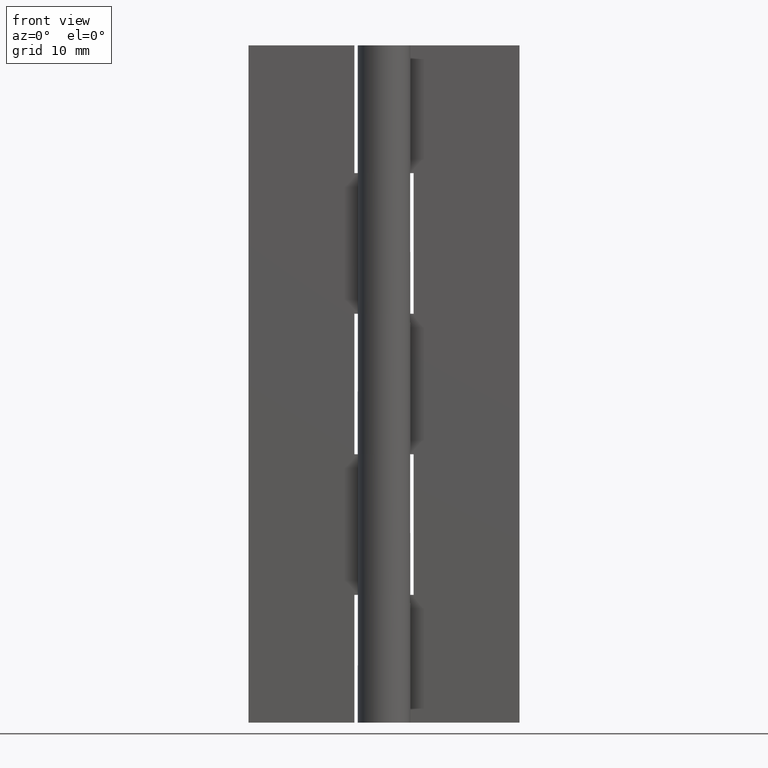
[diagram: clean part render]
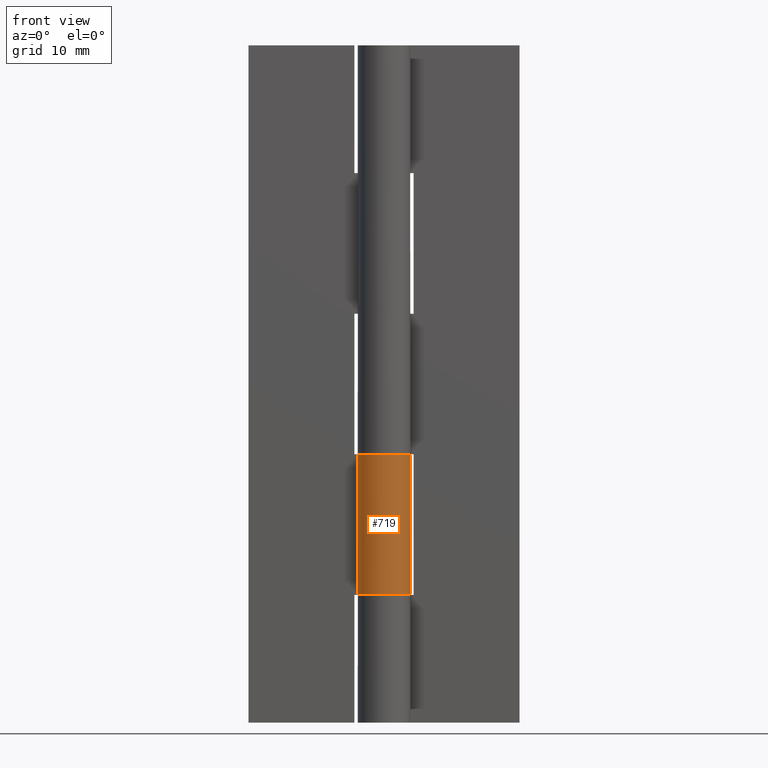
[diagram: same view with one face highlighted and labeled with its STEP entity id]
A machine part, front view. The second image highlights one B-rep face of the part: STEP entity #719.
In plain terms, the highlighted face is a freeform B-spline surface patch.
Its self-contained STEP definition (entity closure, byte-faithful):
#49=CARTESIAN_POINT('',(0.003521362805218,3.099998000000000,31.699996999999900));
#50=VERTEX_POINT('',#49);
#93=CARTESIAN_POINT('',(-2.739981751764050,1.450000000000000,31.699996999999950));
#94=VERTEX_POINT('',#93);
#100=CARTESIAN_POINT('',(0.003521362805217,3.099997999999999,31.699996999999950));
#101=CARTESIAN_POINT('',(2.358923094760797,3.097322442128590,31.699996999999957));
#102=CARTESIAN_POINT('',(2.987554489866697,0.827356132555587,31.699996999999950));
#103=CARTESIAN_POINT('',(3.616185884972598,-1.442610177017417,31.699996999999957));
#104=CARTESIAN_POINT('',(1.597709990920186,-2.656562211752968,31.699996999999950));
#105=CARTESIAN_POINT('',(-0.420765903132225,-3.870514246488519,31.699996999999957));
#106=CARTESIAN_POINT('',(-2.131234265315452,-2.251186466365083,31.699996999999950));
#107=CARTESIAN_POINT('',(-3.841702627498679,-0.631858686241646,31.699996999999957));
#108=CARTESIAN_POINT('',(-2.739981751764051,1.450000000000001,31.699996999999950));
#116=(BOUNDED_CURVE()B_SPLINE_CURVE(2,(#100,#101,#102,#103,#104,#105,#106,#107,#108),.UNSPECIFIED.,.F.,.U.)B_SPLINE_CURVE_WITH_KNOTS((3,2,2,2,3),(0.0,0.250000000000000,0.500000000000000,0.750000000000000,1.0),.UNSPECIFIED.)CURVE()GEOMETRIC_REPRESENTATION_ITEM()RATIONAL_B_SPLINE_CURVE((1.0,0.796236027586614,1.0,0.796236027586614,1.0,0.796236027586614,1.0,0.796236027586614,1.0))REPRESENTATION_ITEM(''));
#117=EDGE_CURVE('',#50,#94,#116,.T.);
#261=CARTESIAN_POINT('',(-2.739981751764050,1.450000000000000,15.100006000000050));
#262=VERTEX_POINT('',#261);
#263=CARTESIAN_POINT('',(0.003521362805218,3.099998000000000,15.100006000000100));
#264=VERTEX_POINT('',#263);
#265=CARTESIAN_POINT('',(-2.739981751764051,1.450000000000000,15.100006000000050));
#266=CARTESIAN_POINT('',(-3.841702627498678,-0.631858686241646,15.100006000000052));
#267=CARTESIAN_POINT('',(-2.131234265315452,-2.251186466365083,15.100006000000050));
#268=CARTESIAN_POINT('',(-0.420765903132226,-3.870514246488518,15.100006000000052));
#269=CARTESIAN_POINT('',(1.597709990920185,-2.656562211752968,15.100006000000050));
#270=CARTESIAN_POINT('',(3.616185884972597,-1.442610177017417,15.100006000000052));
#271=CARTESIAN_POINT('',(2.987554489866698,0.827356132555585,15.100006000000050));
#272=CARTESIAN_POINT('',(2.358923094760800,3.097322442128589,15.100006000000052));
#273=CARTESIAN_POINT('',(0.003521362805218,3.099998000000000,15.100006000000100));
#281=(BOUNDED_CURVE()B_SPLINE_CURVE(2,(#265,#266,#267,#268,#269,#270,#271,#272,#273),.UNSPECIFIED.,.F.,.U.)B_SPLINE_CURVE_WITH_KNOTS((3,2,2,2,3),(0.0,0.250000000000000,0.500000000000000,0.750000000000000,1.0),.UNSPECIFIED.)CURVE()GEOMETRIC_REPRESENTATION_ITEM()RATIONAL_B_SPLINE_CURVE((1.0,0.796236027586614,1.0,0.796236027586614,1.0,0.796236027586614,1.0,0.796236027586614,1.0))REPRESENTATION_ITEM(''));
#282=EDGE_CURVE('',#262,#264,#281,.T.);
#574=CARTESIAN_POINT('',(-2.739981751764050,1.450000000000000,15.100006000000050));
#575=CARTESIAN_POINT('',(-2.739981751764050,1.450000000000000,31.699996999999950));
#576=QUASI_UNIFORM_CURVE('',1,(#574,#575),.UNSPECIFIED.,.F.,.U.);
#577=EDGE_CURVE('',#262,#94,#576,.T.);
#631=CARTESIAN_POINT('',(0.003521362805218,3.099998000000000,15.100006000000100));
#632=CARTESIAN_POINT('',(0.003521362805218,3.099998000000000,31.699996999999900));
#633=QUASI_UNIFORM_CURVE('',1,(#631,#632),.UNSPECIFIED.,.F.,.U.);
#634=EDGE_CURVE('',#264,#50,#633,.T.);
#691=CARTESIAN_POINT('',(-0.023531013869373,3.099910690872605,14.685006225000050));
#692=CARTESIAN_POINT('',(-0.023531013869373,3.099910690872605,32.125371769374951));
#693=CARTESIAN_POINT('',(3.692698970665786,3.128120103345474,14.685006225000048));
#694=CARTESIAN_POINT('',(3.692698970665786,3.128120103345474,32.125371769374958));
#695=CARTESIAN_POINT('',(3.053853635680310,-0.532895835827362,14.685006225000050));
#696=CARTESIAN_POINT('',(3.053853635680310,-0.532895835827362,32.125371769374951));
#697=CARTESIAN_POINT('',(2.415008300694835,-4.193911775000195,14.685006225000048));
#698=CARTESIAN_POINT('',(2.415008300694835,-4.193911775000195,32.125371769374958));
#699=CARTESIAN_POINT('',(-1.072036448958134,-2.908734751073949,14.685006225000050));
#700=CARTESIAN_POINT('',(-1.072036448958134,-2.908734751073949,32.125371769374951));
#701=CARTESIAN_POINT('',(-4.559081198611100,-1.623557727147701,14.685006225000048));
#702=CARTESIAN_POINT('',(-4.559081198611100,-1.623557727147701,32.125371769374958));
#703=CARTESIAN_POINT('',(-2.669261447396856,1.576402018978925,14.685006225000050));
#704=CARTESIAN_POINT('',(-2.669261447396856,1.576402018978925,32.125371769374951));
#712=(BOUNDED_SURFACE()B_SPLINE_SURFACE(1,2,((#691,#693,#695,#697,#699,#701,#703),(#692,#694,#696,#698,#700,#702,#704)),.UNSPECIFIED.,.F.,.F.,.U.)B_SPLINE_SURFACE_WITH_KNOTS((2,2),(3,2,2,3),(0.0,17.440365544374909),(0.0,5.804186543518781,11.608373087037560,17.412559630556341),.UNSPECIFIED.)GEOMETRIC_REPRESENTATION_ITEM()RATIONAL_B_SPLINE_SURFACE(((1.0,0.640556560368615,1.0,0.640556560368615,1.0,0.640556560368615,1.0),(1.0,0.640556560368615,1.0,0.640556560368615,1.0,0.640556560368615,1.0)))REPRESENTATION_ITEM('')SURFACE());
#713=ORIENTED_EDGE('',*,*,#634,.T.);
#714=ORIENTED_EDGE('',*,*,#117,.T.);
#715=ORIENTED_EDGE('',*,*,#577,.F.);
#716=ORIENTED_EDGE('',*,*,#282,.T.);
#717=EDGE_LOOP('',(#713,#714,#715,#716));
#718=FACE_OUTER_BOUND('',#717,.T.);
#719=ADVANCED_FACE('',(#718),#712,.T.);